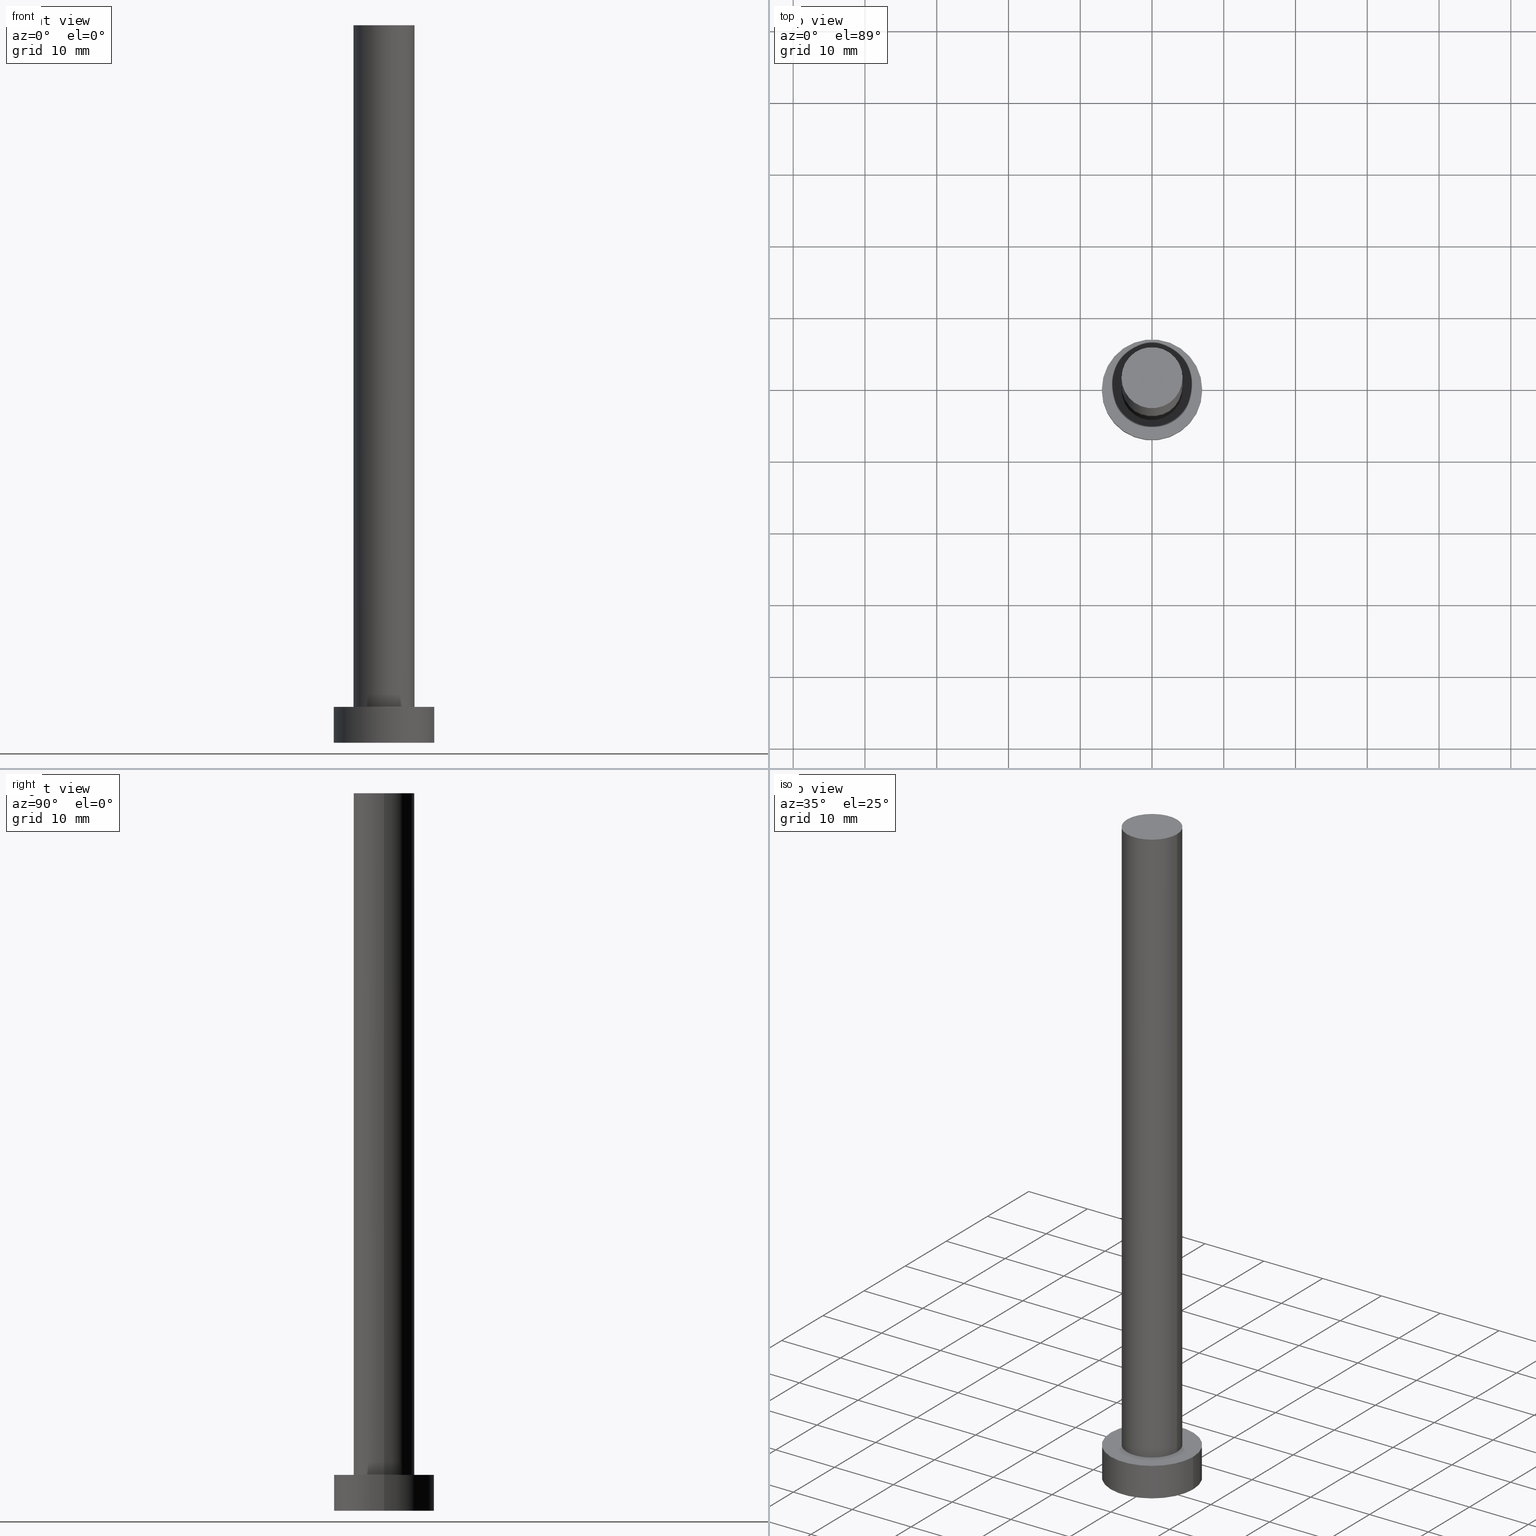
[diagram: canonical four-view strip — front | top / right | iso, engineering-drawing reading convention]
A machine part, canonical four-view strip (front | top / right | iso — engineering-drawing reading convention). The complete STEP part file that produces these views, byte-faithful:
ISO-10303-21;
HEADER;
FILE_DESCRIPTION (( 'STEP AP203' ),
    '1' );
FILE_NAME ('0f92.STEP',
    '2026-02-06T12:39:32',
    ( '' ),
    ( '' ),
    'SwSTEP 2.0',
    'SolidWorks 2019',
    '' );
FILE_SCHEMA (( 'CONFIG_CONTROL_DESIGN' ));
ENDSEC;

DATA;
#1 = DIRECTION ( 'NONE',  ( 1.000000000000000000, 0.000000000000000000, -0.000000000000000000 ) ) ;
#2 = ORIENTED_EDGE ( 'NONE', *, *, #225, .T. ) ;
#3 = ADVANCED_FACE ( 'NONE', ( #96 ), #235, .T. ) ;
#4 = CIRCLE ( 'NONE', #76, 7.000000000000000000 ) ;
#5 = DIRECTION ( 'NONE',  ( 1.000000000000000000, 0.000000000000000000, 0.000000000000000000 ) ) ;
#6 = VERTEX_POINT ( 'NONE', #36 ) ;
#7 = DIRECTION ( 'NONE',  ( -1.000000000000000000, 0.000000000000000000, 0.000000000000000000 ) ) ;
#8 = DIRECTION ( 'NONE',  ( -0.000000000000000000, -0.000000000000000000, -1.000000000000000000 ) ) ;
#9 = VECTOR ( 'NONE', #99, 1000.000000000000000 ) ;
#10 = SECURITY_CLASSIFICATION_LEVEL ( 'unclassified' ) ;
#11 = APPROVAL_ROLE ( '' ) ;
#12 = APPROVAL_ROLE ( '' ) ;
#13 = MANIFOLD_SOLID_BREP ( 'P�idat vysunut�m3', #69 ) ;
#14 = CC_DESIGN_PERSON_AND_ORGANIZATION_ASSIGNMENT ( #245, #37, ( #136 ) ) ;
#15 = CIRCLE ( 'NONE', #26, 7.000000000000000000 ) ;
#16 = ORIENTED_EDGE ( 'NONE', *, *, #187, .F. ) ;
#17 = ORIENTED_EDGE ( 'NONE', *, *, #21, .T. ) ;
#18 = CYLINDRICAL_SURFACE ( 'NONE', #83, 7.000000000000000000 ) ;
#19 = EDGE_LOOP ( 'NONE', ( #16, #248, #179, #169 ) ) ;
#20 = CARTESIAN_POINT ( 'NONE',  ( 7.000000000000000000, 8.572527594031473190E-16, 5.000000000000000000 ) ) ;
#21 = EDGE_CURVE ( 'NONE', #47, #211, #199, .T. ) ;
#22 = ORIENTED_EDGE ( 'NONE', *, *, #150, .T. ) ;
#23 = ADVANCED_FACE ( 'NONE', ( #166 ), #40, .T. ) ;
#24 = PERSON_AND_ORGANIZATION_ROLE ( 'design_supplier' ) ;
#25 = AXIS2_PLACEMENT_3D ( 'NONE', #214, #35, #118 ) ;
#26 = AXIS2_PLACEMENT_3D ( 'NONE', #161, #30, #79 ) ;
#27 = EDGE_CURVE ( 'NONE', #47, #233, #65, .T. ) ;
#28 = ORIENTED_EDGE ( 'NONE', *, *, #27, .F. ) ;
#29 = DIRECTION ( 'NONE',  ( 1.000000000000000000, 0.000000000000000000, 0.000000000000000000 ) ) ;
#30 = DIRECTION ( 'NONE',  ( 0.000000000000000000, 0.000000000000000000, 1.000000000000000000 ) ) ;
#31 = ORIENTED_EDGE ( 'NONE', *, *, #208, .F. ) ;
#32 = APPROVAL_PERSON_ORGANIZATION ( #89, #105, #12 ) ;
#33 = DIRECTION ( 'NONE',  ( 1.000000000000000000, 0.000000000000000000, -0.000000000000000000 ) ) ;
#34 = DIRECTION ( 'NONE',  ( 1.000000000000000000, 0.000000000000000000, -0.000000000000000000 ) ) ;
#35 = DIRECTION ( 'NONE',  ( 0.000000000000000000, 0.000000000000000000, 1.000000000000000000 ) ) ;
#36 = CARTESIAN_POINT ( 'NONE',  ( 4.250000000000000000, 5.204748896376250699E-16, 5.000000000000000000 ) ) ;
#37 = PERSON_AND_ORGANIZATION_ROLE ( 'creator' ) ;
#38 =( LENGTH_UNIT ( ) NAMED_UNIT ( * ) SI_UNIT ( .MILLI., .METRE. ) );
#39 = CC_DESIGN_APPROVAL ( #52, ( #85 ) ) ;
#40 = CYLINDRICAL_SURFACE ( 'NONE', #125, 4.250000000000000000 ) ;
#41 = DATE_AND_TIME ( #149, #197 ) ;
#42 = AXIS2_PLACEMENT_3D ( 'NONE', #170, #178, #5 ) ;
#43 = DATE_AND_TIME ( #180, #151 ) ;
#44 = COORDINATED_UNIVERSAL_TIME_OFFSET ( 1, 0, .AHEAD. ) ;
#45 = CC_DESIGN_PERSON_AND_ORGANIZATION_ASSIGNMENT ( #121, #24, ( #136 ) ) ;
#46 = LOCAL_TIME ( 13, 39, 32.00000000000000000, #88 ) ;
#47 = VERTEX_POINT ( 'NONE', #229 ) ;
#48 = DIRECTION ( 'NONE',  ( 0.000000000000000000, 0.000000000000000000, 1.000000000000000000 ) ) ;
#49 = DIRECTION ( 'NONE',  ( -1.000000000000000000, 0.000000000000000000, 0.000000000000000000 ) ) ;
#50 = DIRECTION ( 'NONE',  ( 0.000000000000000000, 0.000000000000000000, 1.000000000000000000 ) ) ;
#51 = CARTESIAN_POINT ( 'NONE',  ( 0.000000000000000000, 0.000000000000000000, 100.0000000000000000 ) ) ;
#52 = APPROVAL ( #255, 'NEUR�EN�' ) ;
#53 = DIRECTION ( 'NONE',  ( 0.000000000000000000, 0.000000000000000000, 1.000000000000000000 ) ) ;
#54 = AXIS2_PLACEMENT_3D ( 'NONE', #198, #50, #33 ) ;
#55 = DIRECTION ( 'NONE',  ( -0.000000000000000000, -0.000000000000000000, -1.000000000000000000 ) ) ;
#56 = ORIENTED_EDGE ( 'NONE', *, *, #144, .F. ) ;
#57 = ORIENTED_EDGE ( 'NONE', *, *, #27, .T. ) ;
#58 = EDGE_CURVE ( 'NONE', #6, #196, #90, .T. ) ;
#59 = CIRCLE ( 'NONE', #247, 4.250000000000000000 ) ;
#60 = DIRECTION ( 'NONE',  ( -1.000000000000000000, 0.000000000000000000, 0.000000000000000000 ) ) ;
#61 = ADVANCED_FACE ( 'NONE', ( #250, #157 ), #212, .T. ) ;
#62 = LOCAL_TIME ( 13, 39, 32.00000000000000000, #239 ) ;
#63 = PERSON_AND_ORGANIZATION ( #64, #153 ) ;
#64 = PERSON ( 'NEUR�EN�', 'NEUR�EN�', 'NEUR�EN�', ('NEUR�EN�'), ('NEUR�EN�'), ('NEUR�EN�') ) ;
#65 = CIRCLE ( 'NONE', #162, 7.000000000000000000 ) ;
#66 = CYLINDRICAL_SURFACE ( 'NONE', #246, 7.000000000000000000 ) ;
#67 = EDGE_LOOP ( 'NONE', ( #31, #93 ) ) ;
#68 = DIRECTION ( 'NONE',  ( 1.000000000000000000, 0.000000000000000000, 0.000000000000000000 ) ) ;
#69 = CLOSED_SHELL ( 'NONE', ( #167, #202, #124, #61, #138, #23, #3 ) ) ;
#70 = DIRECTION ( 'NONE',  ( -0.000000000000000000, -0.000000000000000000, -1.000000000000000000 ) ) ;
#71 = FACE_OUTER_BOUND ( 'NONE', #237, .T. ) ;
#72 = ORIENTED_EDGE ( 'NONE', *, *, #21, .F. ) ;
#73 = LINE ( 'NONE', #236, #228 ) ;
#74 = ORIENTED_EDGE ( 'NONE', *, *, #58, .T. ) ;
#75 = PRODUCT_DEFINITION_SHAPE ( 'NONE', 'NONE',  #85 ) ;
#76 = AXIS2_PLACEMENT_3D ( 'NONE', #175, #123, #200 ) ;
#77 =( NAMED_UNIT ( * ) PLANE_ANGLE_UNIT ( ) SI_UNIT ( $, .RADIAN. ) );
#78 = EDGE_CURVE ( 'NONE', #192, #131, #59, .T. ) ;
#79 = DIRECTION ( 'NONE',  ( 1.000000000000000000, 0.000000000000000000, 0.000000000000000000 ) ) ;
#80 = CALENDAR_DATE ( 2026, 6, 2 ) ;
#81 = DIRECTION ( 'NONE',  ( 0.000000000000000000, 0.000000000000000000, 1.000000000000000000 ) ) ;
#82 = CARTESIAN_POINT ( 'NONE',  ( 0.000000000000000000, 0.000000000000000000, 5.000000000000000000 ) ) ;
#83 = AXIS2_PLACEMENT_3D ( 'NONE', #195, #163, #172 ) ;
#84 = CYLINDRICAL_SURFACE ( 'NONE', #122, 4.250000000000000000 ) ;
#85 = PRODUCT_DEFINITION ( 'NEZN�M�', '', #136, #126 ) ;
#86 = PERSON_AND_ORGANIZATION_ROLE ( 'classification_officer' ) ;
#87 = CARTESIAN_POINT ( 'NONE',  ( -7.000000000000000000, 0.000000000000000000, 0.000000000000000000 ) ) ;
#88 = COORDINATED_UNIVERSAL_TIME_OFFSET ( 1, 0, .AHEAD. ) ;
#89 = PERSON_AND_ORGANIZATION ( #64, #153 ) ;
#90 = CIRCLE ( 'NONE', #42, 4.250000000000000000 ) ;
#91 = CC_DESIGN_PERSON_AND_ORGANIZATION_ASSIGNMENT ( #220, #207, ( #85 ) ) ;
#92 = EDGE_LOOP ( 'NONE', ( #72, #251, #110, #2 ) ) ;
#93 = ORIENTED_EDGE ( 'NONE', *, *, #58, .F. ) ;
#94 = DIRECTION ( 'NONE',  ( 1.000000000000000000, 0.000000000000000000, 0.000000000000000000 ) ) ;
#95 = PRODUCT_RELATED_PRODUCT_CATEGORY ( 'detail', '', ( #194 ) ) ;
#96 = FACE_OUTER_BOUND ( 'NONE', #230, .T. ) ;
#97 = VECTOR ( 'NONE', #156, 1000.000000000000000 ) ;
#98 = CARTESIAN_POINT ( 'NONE',  ( 7.000000000000000000, 8.572527594031473190E-16, 0.000000000000000000 ) ) ;
#99 = DIRECTION ( 'NONE',  ( -0.000000000000000000, -0.000000000000000000, -1.000000000000000000 ) ) ;
#100 = CALENDAR_DATE ( 2026, 6, 2 ) ;
#101 = CARTESIAN_POINT ( 'NONE',  ( 0.000000000000000000, 0.000000000000000000, 100.0000000000000000 ) ) ;
#102 = PERSON_AND_ORGANIZATION ( #64, #153 ) ;
#103 = CC_DESIGN_APPROVAL ( #105, ( #136 ) ) ;
#104 = CARTESIAN_POINT ( 'NONE',  ( 0.000000000000000000, 0.000000000000000000, 100.0000000000000000 ) ) ;
#105 = APPROVAL ( #181, 'NEUR�EN�' ) ;
#106 = CC_DESIGN_APPROVAL ( #112, ( #190 ) ) ;
#107 = PERSON_AND_ORGANIZATION ( #64, #153 ) ;
#108 =( GEOMETRIC_REPRESENTATION_CONTEXT ( 3 ) GLOBAL_UNCERTAINTY_ASSIGNED_CONTEXT ( ( #155 ) ) GLOBAL_UNIT_ASSIGNED_CONTEXT ( ( #38, #77, #183 ) ) REPRESENTATION_CONTEXT ( 'NONE', 'WORKASPACE' ) );
#109 = CIRCLE ( 'NONE', #148, 4.250000000000000000 ) ;
#110 = ORIENTED_EDGE ( 'NONE', *, *, #189, .T. ) ;
#111 = COORDINATED_UNIVERSAL_TIME_OFFSET ( 1, 0, .AHEAD. ) ;
#112 = APPROVAL ( #128, 'NEUR�EN�' ) ;
#113 = FACE_OUTER_BOUND ( 'NONE', #160, .T. ) ;
#114 = ORIENTED_EDGE ( 'NONE', *, *, #120, .F. ) ;
#115 = FACE_OUTER_BOUND ( 'NONE', #92, .T. ) ;
#116 = EDGE_LOOP ( 'NONE', ( #254, #142, #74, #56 ) ) ;
#117 = CARTESIAN_POINT ( 'NONE',  ( -7.000000000000000000, 0.000000000000000000, 5.000000000000000000 ) ) ;
#118 = DIRECTION ( 'NONE',  ( 1.000000000000000000, 0.000000000000000000, 0.000000000000000000 ) ) ;
#119 = ORIENTED_EDGE ( 'NONE', *, *, #120, .T. ) ;
#120 = EDGE_CURVE ( 'NONE', #211, #173, #15, .T. ) ;
#121 = PERSON_AND_ORGANIZATION ( #64, #153 ) ;
#122 = AXIS2_PLACEMENT_3D ( 'NONE', #146, #185, #60 ) ;
#123 = DIRECTION ( 'NONE',  ( 0.000000000000000000, 0.000000000000000000, 1.000000000000000000 ) ) ;
#124 = ADVANCED_FACE ( 'NONE', ( #115 ), #18, .T. ) ;
#125 = AXIS2_PLACEMENT_3D ( 'NONE', #104, #184, #7 ) ;
#126 = DESIGN_CONTEXT ( 'detailed design', #204, 'design' ) ;
#127 = APPROVAL_DATE_TIME ( #43, #52 ) ;
#128 = APPROVAL_STATUS ( 'not_yet_approved' ) ;
#129 = AXIS2_PLACEMENT_3D ( 'NONE', #209, #132, #29 ) ;
#130 = CC_DESIGN_PERSON_AND_ORGANIZATION_ASSIGNMENT ( #63, #86, ( #190 ) ) ;
#131 = VERTEX_POINT ( 'NONE', #238 ) ;
#132 = DIRECTION ( 'NONE',  ( 0.000000000000000000, 0.000000000000000000, 1.000000000000000000 ) ) ;
#133 = CARTESIAN_POINT ( 'NONE',  ( 0.000000000000000000, 0.000000000000000000, 100.0000000000000000 ) ) ;
#134 = CARTESIAN_POINT ( 'NONE',  ( -4.250000000000000000, 0.000000000000000000, 5.000000000000000000 ) ) ;
#135 = CC_DESIGN_SECURITY_CLASSIFICATION ( #190, ( #136 ) ) ;
#136 = PRODUCT_DEFINITION_FORMATION_WITH_SPECIFIED_SOURCE ( 'LIBOVOLN�', '', #194, .NOT_KNOWN. ) ;
#137 = DIRECTION ( 'NONE',  ( 1.000000000000000000, 0.000000000000000000, 0.000000000000000000 ) ) ;
#138 = ADVANCED_FACE ( 'NONE', ( #71 ), #159, .F. ) ;
#139 = EDGE_LOOP ( 'NONE', ( #22, #57 ) ) ;
#140 = DATE_AND_TIME ( #80, #46 ) ;
#141 = DIRECTION ( 'NONE',  ( 0.000000000000000000, 0.000000000000000000, 1.000000000000000000 ) ) ;
#142 = ORIENTED_EDGE ( 'NONE', *, *, #187, .T. ) ;
#143 = DATE_AND_TIME ( #100, #62 ) ;
#144 = EDGE_CURVE ( 'NONE', #131, #196, #73, .T. ) ;
#145 = APPROVAL_PERSON_ORGANIZATION ( #102, #52, #177 ) ;
#146 = CARTESIAN_POINT ( 'NONE',  ( 0.000000000000000000, 0.000000000000000000, 100.0000000000000000 ) ) ;
#147 = COORDINATED_UNIVERSAL_TIME_OFFSET ( 1, 0, .AHEAD. ) ;
#148 = AXIS2_PLACEMENT_3D ( 'NONE', #101, #141, #240 ) ;
#149 = CALENDAR_DATE ( 2026, 6, 2 ) ;
#150 = EDGE_CURVE ( 'NONE', #233, #47, #242, .T. ) ;
#151 = LOCAL_TIME ( 13, 39, 32.00000000000000000, #111 ) ;
#152 = CARTESIAN_POINT ( 'NONE',  ( 4.250000000000000000, 5.204748896376250699E-16, 100.0000000000000000 ) ) ;
#153 = ORGANIZATION ( 'NEUR�EN�', 'NEUR�EN�', '' ) ;
#154 = CARTESIAN_POINT ( 'NONE',  ( 0.000000000000000000, 0.000000000000000000, 0.000000000000000000 ) ) ;
#155 = UNCERTAINTY_MEASURE_WITH_UNIT (LENGTH_MEASURE( 1.000000000000000082E-05 ), #38, 'distance_accuracy_value', 'NONE');
#156 = DIRECTION ( 'NONE',  ( -0.000000000000000000, -0.000000000000000000, -1.000000000000000000 ) ) ;
#157 = FACE_OUTER_BOUND ( 'NONE', #139, .T. ) ;
#158 = PERSON_AND_ORGANIZATION_ROLE ( 'design_owner' ) ;
#159 = PLANE ( 'NONE',  #205 ) ;
#160 = EDGE_LOOP ( 'NONE', ( #28, #17, #119, #215 ) ) ;
#161 = CARTESIAN_POINT ( 'NONE',  ( 0.000000000000000000, 0.000000000000000000, 0.000000000000000000 ) ) ;
#162 = AXIS2_PLACEMENT_3D ( 'NONE', #82, #81, #94 ) ;
#163 = DIRECTION ( 'NONE',  ( -0.000000000000000000, -0.000000000000000000, -1.000000000000000000 ) ) ;
#164 = FACE_OUTER_BOUND ( 'NONE', #116, .T. ) ;
#165 = CARTESIAN_POINT ( 'NONE',  ( 4.250000000000000000, 5.204748896376250699E-16, 100.0000000000000000 ) ) ;
#166 = FACE_OUTER_BOUND ( 'NONE', #19, .T. ) ;
#167 = ADVANCED_FACE ( 'NONE', ( #164 ), #84, .T. ) ;
#168 = APPROVAL_DATE_TIME ( #223, #112 ) ;
#169 = ORIENTED_EDGE ( 'NONE', *, *, #208, .T. ) ;
#170 = CARTESIAN_POINT ( 'NONE',  ( 0.000000000000000000, 0.000000000000000000, 5.000000000000000000 ) ) ;
#171 = ORIENTED_EDGE ( 'NONE', *, *, #78, .T. ) ;
#172 = DIRECTION ( 'NONE',  ( -1.000000000000000000, 0.000000000000000000, 0.000000000000000000 ) ) ;
#173 = VERTEX_POINT ( 'NONE', #87 ) ;
#174 = PERSON_AND_ORGANIZATION ( #64, #153 ) ;
#175 = CARTESIAN_POINT ( 'NONE',  ( 0.000000000000000000, 0.000000000000000000, 0.000000000000000000 ) ) ;
#176 = DIRECTION ( 'NONE',  ( 0.000000000000000000, 0.000000000000000000, 1.000000000000000000 ) ) ;
#177 = APPROVAL_ROLE ( '' ) ;
#178 = DIRECTION ( 'NONE',  ( 0.000000000000000000, 0.000000000000000000, 1.000000000000000000 ) ) ;
#179 = ORIENTED_EDGE ( 'NONE', *, *, #144, .T. ) ;
#180 = CALENDAR_DATE ( 2026, 6, 2 ) ;
#181 = APPROVAL_STATUS ( 'not_yet_approved' ) ;
#182 = AXIS2_PLACEMENT_3D ( 'NONE', #154, #48, #68 ) ;
#183 =( NAMED_UNIT ( * ) SI_UNIT ( $, .STERADIAN. ) SOLID_ANGLE_UNIT ( ) );
#184 = DIRECTION ( 'NONE',  ( -0.000000000000000000, -0.000000000000000000, -1.000000000000000000 ) ) ;
#185 = DIRECTION ( 'NONE',  ( -0.000000000000000000, -0.000000000000000000, -1.000000000000000000 ) ) ;
#186 = APPROVAL_PERSON_ORGANIZATION ( #107, #112, #11 ) ;
#187 = EDGE_CURVE ( 'NONE', #192, #6, #241, .T. ) ;
#188 = APPLICATION_CONTEXT ( 'configuration controlled 3d designs of mechanical parts and assemblies' ) ;
#189 = EDGE_CURVE ( 'NONE', #233, #173, #244, .T. ) ;
#190 = SECURITY_CLASSIFICATION ( '', '', #10 ) ;
#191 = ORIENTED_EDGE ( 'NONE', *, *, #243, .T. ) ;
#192 = VERTEX_POINT ( 'NONE', #152 ) ;
#193 = SHAPE_DEFINITION_REPRESENTATION ( #75, #253 ) ;
#194 = PRODUCT ( '0f92', '0f92', '', ( #231 ) ) ;
#195 = CARTESIAN_POINT ( 'NONE',  ( 0.000000000000000000, 0.000000000000000000, 5.000000000000000000 ) ) ;
#196 = VERTEX_POINT ( 'NONE', #134 ) ;
#197 = LOCAL_TIME ( 13, 39, 32.00000000000000000, #147 ) ;
#198 = CARTESIAN_POINT ( 'NONE',  ( 0.000000000000000000, 0.000000000000000000, 5.000000000000000000 ) ) ;
#199 = LINE ( 'NONE', #20, #9 ) ;
#200 = DIRECTION ( 'NONE',  ( 1.000000000000000000, 0.000000000000000000, 0.000000000000000000 ) ) ;
#201 = ORIENTED_EDGE ( 'NONE', *, *, #225, .F. ) ;
#202 = ADVANCED_FACE ( 'NONE', ( #113 ), #66, .T. ) ;
#203 = AXIS2_PLACEMENT_3D ( 'NONE', #51, #53, #34 ) ;
#204 = APPLICATION_CONTEXT ( 'configuration controlled 3d designs of mechanical parts and assemblies' ) ;
#205 = AXIS2_PLACEMENT_3D ( 'NONE', #234, #176, #1 ) ;
#206 = DATE_TIME_ROLE ( 'classification_date' ) ;
#207 = PERSON_AND_ORGANIZATION_ROLE ( 'creator' ) ;
#208 = EDGE_CURVE ( 'NONE', #196, #6, #249, .T. ) ;
#209 = CARTESIAN_POINT ( 'NONE',  ( 0.000000000000000000, 0.000000000000000000, 5.000000000000000000 ) ) ;
#210 = DIRECTION ( 'NONE',  ( 0.000000000000000000, 0.000000000000000000, 1.000000000000000000 ) ) ;
#211 = VERTEX_POINT ( 'NONE', #98 ) ;
#212 = PLANE ( 'NONE',  #54 ) ;
#213 = LOCAL_TIME ( 13, 39, 32.00000000000000000, #44 ) ;
#214 = CARTESIAN_POINT ( 'NONE',  ( 0.000000000000000000, 0.000000000000000000, 5.000000000000000000 ) ) ;
#215 = ORIENTED_EDGE ( 'NONE', *, *, #189, .F. ) ;
#216 = CC_DESIGN_DATE_AND_TIME_ASSIGNMENT ( #41, #206, ( #190 ) ) ;
#217 = DATE_TIME_ROLE ( 'creation_date' ) ;
#218 = APPROVAL_DATE_TIME ( #143, #105 ) ;
#219 = CARTESIAN_POINT ( 'NONE',  ( -7.000000000000000000, 0.000000000000000000, 5.000000000000000000 ) ) ;
#220 = PERSON_AND_ORGANIZATION ( #64, #153 ) ;
#221 = CC_DESIGN_DATE_AND_TIME_ASSIGNMENT ( #140, #217, ( #85 ) ) ;
#222 = CALENDAR_DATE ( 2026, 6, 2 ) ;
#223 = DATE_AND_TIME ( #222, #213 ) ;
#224 = VECTOR ( 'NONE', #8, 1000.000000000000000 ) ;
#225 = EDGE_CURVE ( 'NONE', #173, #211, #4, .T. ) ;
#226 = APPLICATION_PROTOCOL_DEFINITION ( 'international standard', 'config_control_design', 1994, #204 ) ;
#227 = CARTESIAN_POINT ( 'NONE',  ( 0.000000000000000000, 0.000000000000000000, 5.000000000000000000 ) ) ;
#228 = VECTOR ( 'NONE', #55, 1000.000000000000000 ) ;
#229 = CARTESIAN_POINT ( 'NONE',  ( 7.000000000000000000, 8.572527594031473190E-16, 5.000000000000000000 ) ) ;
#230 = EDGE_LOOP ( 'NONE', ( #191, #171 ) ) ;
#231 = MECHANICAL_CONTEXT ( 'NONE', #188, 'mechanical' ) ;
#232 = CC_DESIGN_PERSON_AND_ORGANIZATION_ASSIGNMENT ( #174, #158, ( #194 ) ) ;
#233 = VERTEX_POINT ( 'NONE', #117 ) ;
#234 = CARTESIAN_POINT ( 'NONE',  ( 0.000000000000000000, 0.000000000000000000, 0.000000000000000000 ) ) ;
#235 = PLANE ( 'NONE',  #203 ) ;
#236 = CARTESIAN_POINT ( 'NONE',  ( -4.250000000000000000, 0.000000000000000000, 100.0000000000000000 ) ) ;
#237 = EDGE_LOOP ( 'NONE', ( #201, #114 ) ) ;
#238 = CARTESIAN_POINT ( 'NONE',  ( -4.250000000000000000, 0.000000000000000000, 100.0000000000000000 ) ) ;
#239 = COORDINATED_UNIVERSAL_TIME_OFFSET ( 1, 0, .AHEAD. ) ;
#240 = DIRECTION ( 'NONE',  ( 1.000000000000000000, 0.000000000000000000, 0.000000000000000000 ) ) ;
#241 = LINE ( 'NONE', #165, #224 ) ;
#242 = CIRCLE ( 'NONE', #25, 7.000000000000000000 ) ;
#243 = EDGE_CURVE ( 'NONE', #131, #192, #109, .T. ) ;
#244 = LINE ( 'NONE', #219, #97 ) ;
#245 = PERSON_AND_ORGANIZATION ( #64, #153 ) ;
#246 = AXIS2_PLACEMENT_3D ( 'NONE', #227, #70, #49 ) ;
#247 = AXIS2_PLACEMENT_3D ( 'NONE', #133, #210, #137 ) ;
#248 = ORIENTED_EDGE ( 'NONE', *, *, #243, .F. ) ;
#249 = CIRCLE ( 'NONE', #129, 4.250000000000000000 ) ;
#250 = FACE_BOUND ( 'NONE', #67, .T. ) ;
#251 = ORIENTED_EDGE ( 'NONE', *, *, #150, .F. ) ;
#252 = APPLICATION_PROTOCOL_DEFINITION ( 'international standard', 'config_control_design', 1994, #188 ) ;
#253 = ADVANCED_BREP_SHAPE_REPRESENTATION ( '0f92', ( #13, #182 ), #108 ) ;
#254 = ORIENTED_EDGE ( 'NONE', *, *, #78, .F. ) ;
#255 = APPROVAL_STATUS ( 'not_yet_approved' ) ;
ENDSEC;
END-ISO-10303-21;
